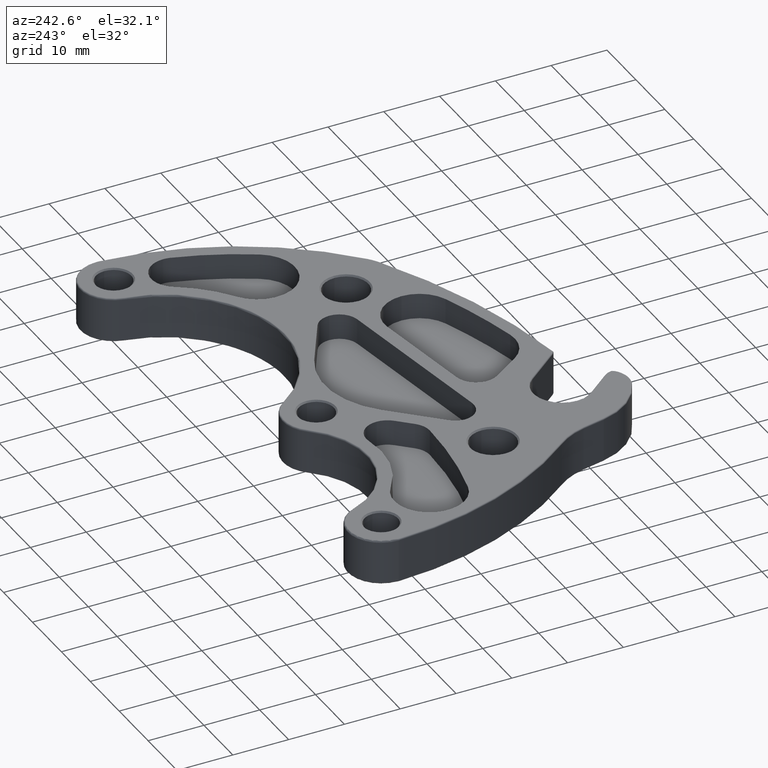
[diagram: clean part render]
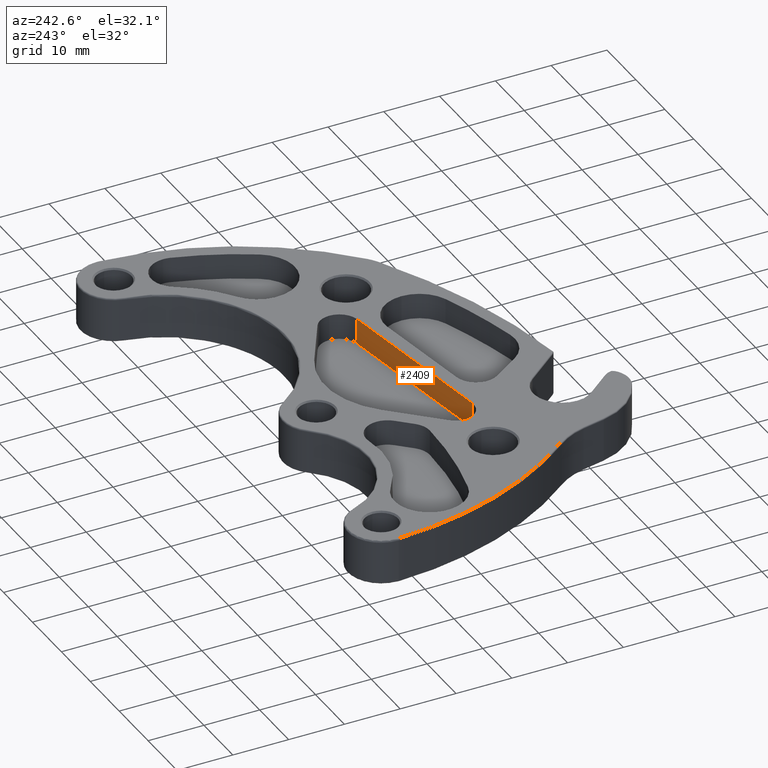
[diagram: same view with one face highlighted and labeled with its STEP entity id]
A machine part, auxiliary view. The second image highlights one B-rep face of the part: STEP entity #2409.
In plain terms, the highlighted planar face has unit normal (0.1514, -0.9885, -0).
Its self-contained STEP definition (entity closure, byte-faithful):
#32 = CARTESIAN_POINT ( 'NONE',  ( 2.478599164914152997, -5.923411153633166393, 0.3149999999999993916 ) ) ;
#54 = DIRECTION ( 'NONE',  ( 0.1513786755102259352, -0.9884758452287895070, -4.079889994189924635E-30 ) ) ;
#114 = EDGE_CURVE ( 'NONE', #2190, #3257, #394, .T. ) ;
#249 = ORIENTED_EDGE ( 'NONE', *, *, #624, .T. ) ;
#394 = LINE ( 'NONE', #927, #3239 ) ;
#434 = VECTOR ( 'NONE', #3508, 39.37007874015748143 ) ;
#624 = EDGE_CURVE ( 'NONE', #2556, #2190, #3489, .T. ) ;
#630 = FACE_OUTER_BOUND ( 'NONE', #2771, .T. ) ;
#636 = EDGE_CURVE ( 'NONE', #2556, #974, #1303, .T. ) ;
#654 = AXIS2_PLACEMENT_3D ( 'NONE', #3083, #54, #1995 ) ;
#768 = DIRECTION ( 'NONE',  ( -9.013352139732279557E-31, 3.389636702121541407E-30, 1.000000000000000000 ) ) ;
#889 = DIRECTION ( 'NONE',  ( 0.9884758452287893959, 0.1513786755102258241, -5.700752635386220315E-32 ) ) ;
#927 = CARTESIAN_POINT ( 'NONE',  ( 1.270380031973001200, -6.108442090862001628, 0.3149999999999993916 ) ) ;
#974 = VERTEX_POINT ( 'NONE', #1140 ) ;
#1033 = CARTESIAN_POINT ( 'NONE',  ( 2.478599164914152997, -5.923411153633166393, 0.1349999999999997313 ) ) ;
#1140 = CARTESIAN_POINT ( 'NONE',  ( 2.478599164914152997, -5.923411153633166393, 0.1349999999999997313 ) ) ;
#1303 = LINE ( 'NONE', #1946, #2104 ) ;
#1843 = EDGE_CURVE ( 'NONE', #974, #3257, #1918, .T. ) ;
#1918 = LINE ( 'NONE', #1033, #434 ) ;
#1946 = CARTESIAN_POINT ( 'NONE',  ( 1.270380031973000756, -6.108442090862000740, 0.1349999999999997868 ) ) ;
#1995 = DIRECTION ( 'NONE',  ( 0.9884758452287893959, 0.1513786755102259074, 4.005934284325451669E-32 ) ) ;
#2029 = VECTOR ( 'NONE', #768, 39.37007874015748143 ) ;
#2067 = CARTESIAN_POINT ( 'NONE',  ( 1.270380031972999646, -6.108442090861990970, 0.3149999999999993916 ) ) ;
#2104 = VECTOR ( 'NONE', #3054, 39.37007874015748143 ) ;
#2190 = VERTEX_POINT ( 'NONE', #2067 ) ;
#2232 = ORIENTED_EDGE ( 'NONE', *, *, #1843, .F. ) ;
#2409 = ADVANCED_FACE ( 'NONE', ( #630 ), #3368, .F. ) ;
#2556 = VERTEX_POINT ( 'NONE', #2867 ) ;
#2771 = EDGE_LOOP ( 'NONE', ( #3392, #2232, #3564, #249 ) ) ;
#2867 = CARTESIAN_POINT ( 'NONE',  ( 1.270380031973000756, -6.108442090862000740, 0.1349999999999997868 ) ) ;
#3054 = DIRECTION ( 'NONE',  ( 0.9884758452287893959, 0.1513786755102258241, -5.700752635386220315E-32 ) ) ;
#3083 = CARTESIAN_POINT ( 'NONE',  ( 1.270380031973000756, -6.108442090862000740, 0.1349999999999997868 ) ) ;
#3239 = VECTOR ( 'NONE', #889, 39.37007874015748143 ) ;
#3257 = VERTEX_POINT ( 'NONE', #32 ) ;
#3368 = PLANE ( 'NONE',  #654 ) ;
#3392 = ORIENTED_EDGE ( 'NONE', *, *, #114, .T. ) ;
#3489 = LINE ( 'NONE', #3539, #2029 ) ;
#3508 = DIRECTION ( 'NONE',  ( -9.013352139732279557E-31, 3.389636702121541407E-30, 1.000000000000000000 ) ) ;
#3539 = CARTESIAN_POINT ( 'NONE',  ( 1.270380031973000756, -6.108442090862000740, 0.1349999999999997868 ) ) ;
#3564 = ORIENTED_EDGE ( 'NONE', *, *, #636, .F. ) ;